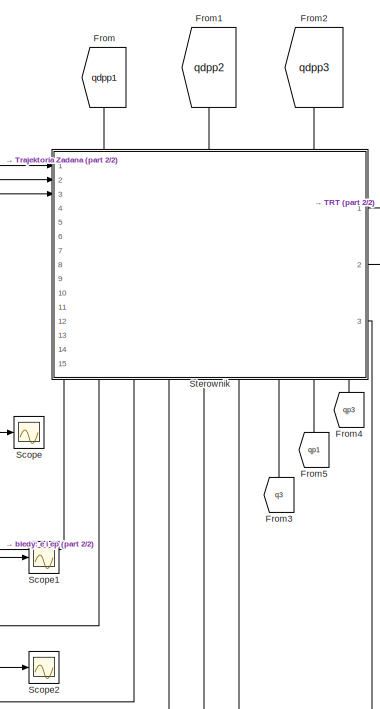
[diagram: root canvas - part 1/2, top right region]
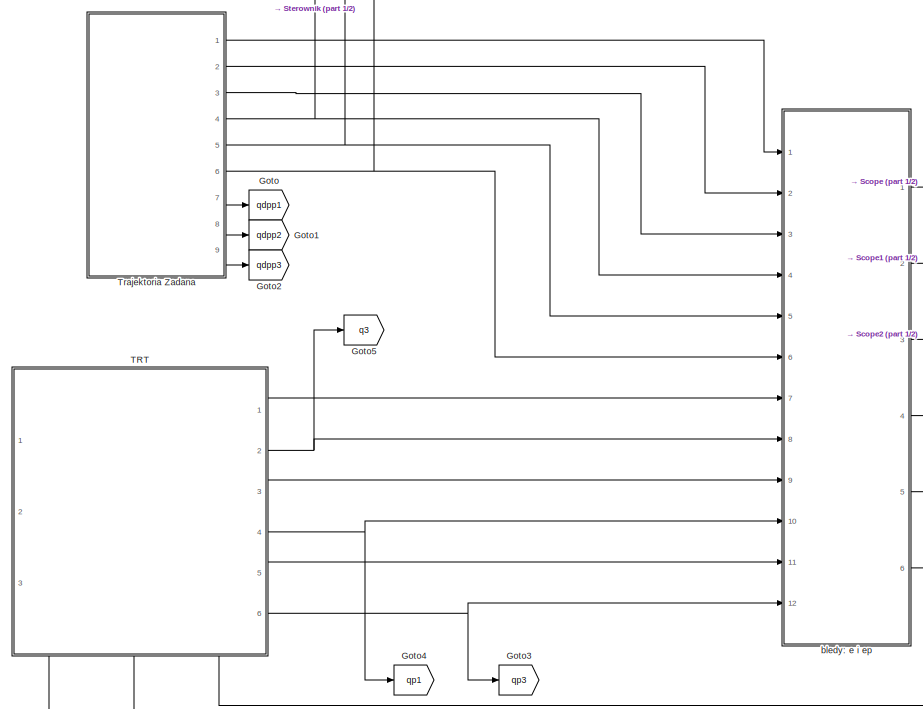
[diagram: root canvas - part 2/2, middle left region]
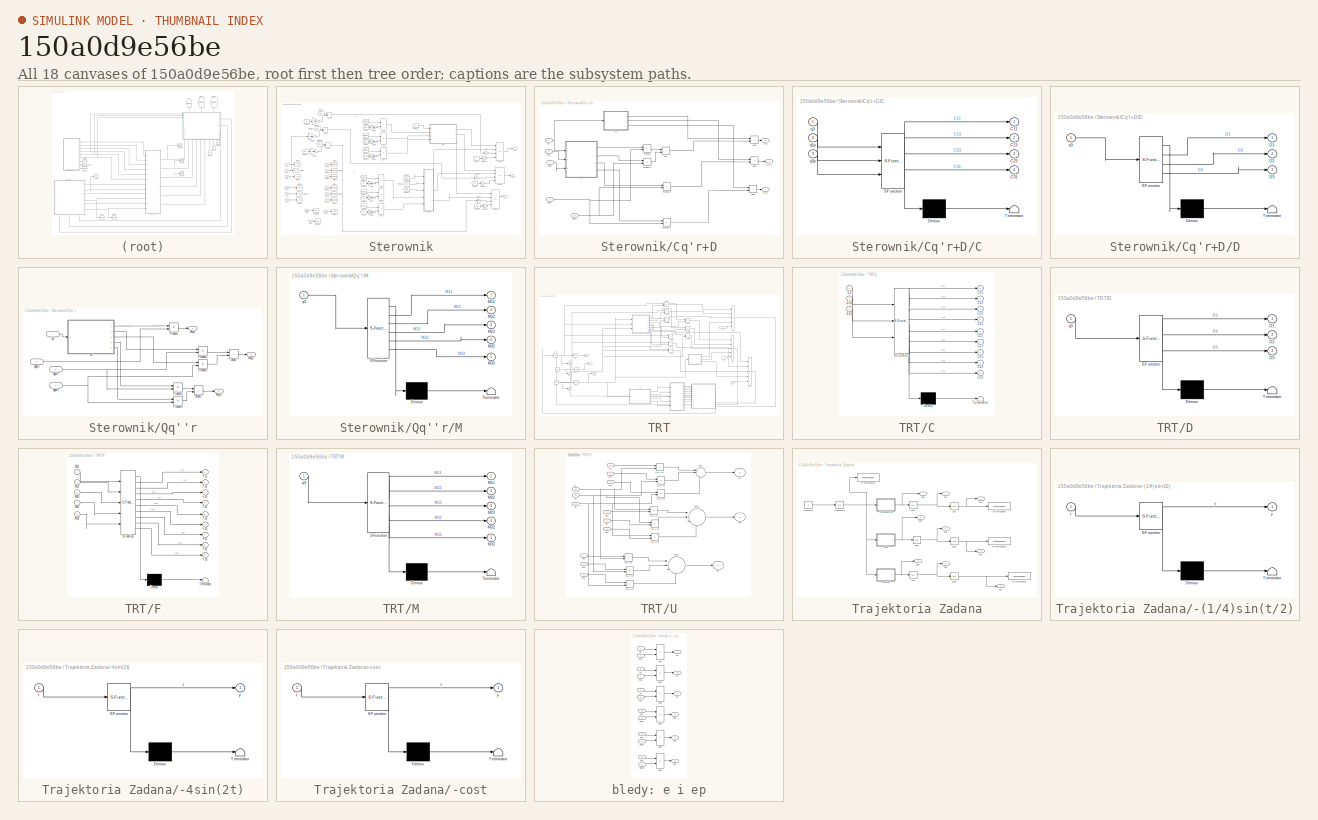
[diagram: thumbnail index - all 18 canvases of the model, root first then tree order]
MODEL slx_150a0d9e56be
KIND model
CONFIG AbsTol = auto
CONFIG EnableMultiTasking = off
CONFIG FixedStep = auto
CONFIG MaxStep = auto
CONFIG MinStep = auto
CONFIG RelTol = 1e-10
CONFIG SampleTimeConstraint = Unconstrained
CONFIG SolverName = ode45
CONFIG StartTime = 0.0
CONFIG StopTime = 20
BLOCK [From] From
  GotoTag = qdpp1
  NameLocation = left
BLOCK [From] From1
  GotoTag = qdpp2
  NameLocation = left
BLOCK [From] From2
  GotoTag = qdpp3
  NameLocation = left
BLOCK [From] From3
  GotoTag = q3
  NameLocation = right
BLOCK [From] From4
  GotoTag = qp3
  NameLocation = right
BLOCK [From] From5
  GotoTag = qp1
  NameLocation = right
BLOCK [Goto] Goto
  GotoTag = qdpp1
BLOCK [Goto] Goto1
  GotoTag = qdpp2
BLOCK [Goto] Goto2
  GotoTag = qdpp3
BLOCK [Goto] Goto3
  GotoTag = qp3
BLOCK [Goto] Goto4
  GotoTag = qp1
BLOCK [Goto] Goto5
  GotoTag = q3
BLOCK [Scope] Scope
  Floating = off
  NumInputPorts = 1
  Ports = [1]
  ScopeSpecificationString = Simulink.scopes.TimeScopeBlockCfg('CurrentConfiguration', extmgr.ConfigurationSet(extmgr.Configuration('Core','General UI',true),extmgr.Configuration('Core','Source UI',true),extmgr.Configuration('Sources','WiredSimulink',true),extmgr.Configuration('Visuals','Time Domain',true,'SerializedDisplays',{struct('MinYLimReal','-0.25005','MaxYLimReal','2.25001','YLabelReal','','MinYLimMag','0.00000','MaxY...<+1362ch>
BLOCK [Scope] Scope1
  Floating = off
  NumInputPorts = 1
  Ports = [1]
  ScopeSpecificationString = Simulink.scopes.TimeScopeBlockCfg('CurrentConfiguration', extmgr.ConfigurationSet(extmgr.Configuration('Core','General UI',true),extmgr.Configuration('Core','Source UI',true),extmgr.Configuration('Sources','WiredSimulink',true,'DataLoggingVariableName','ScopeData1'),extmgr.Configuration('Visuals','Time Domain',true,'SerializedDisplays',{struct('MinYLimReal','-0.375','MaxYLimReal','3.375','YLabelRe...<+1358ch>
BLOCK [Scope] Scope2
  Floating = off
  NumInputPorts = 1
  Ports = [1]
  ScopeSpecificationString = Simulink.scopes.TimeScopeBlockCfg('CurrentConfiguration', extmgr.ConfigurationSet(extmgr.Configuration('Core','General UI',true),extmgr.Configuration('Core','Source UI',true),extmgr.Configuration('Sources','WiredSimulink',true,'DataLoggingVariableName','ScopeData2'),extmgr.Configuration('Visuals','Time Domain',true,'SerializedDisplays',{struct('MinYLimReal','-0.25','MaxYLimReal','2.25','YLabelReal...<+1352ch>
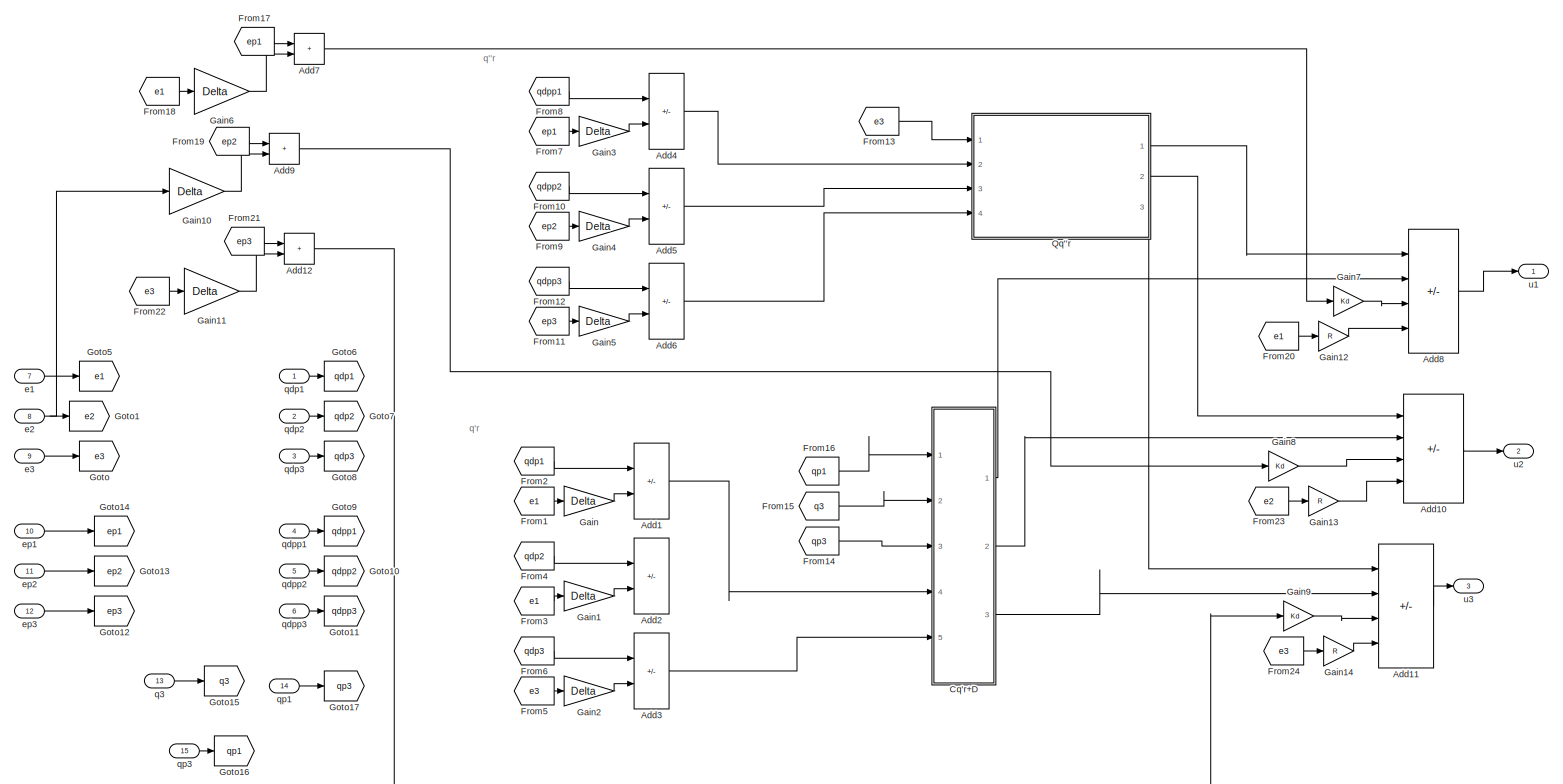
[diagram: Sterownik - part 1/2, most of the canvas]
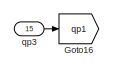
[diagram: Sterownik - part 2/2, bottom left region]
BLOCK [SubSystem] Sterownik
  PortSchema = {"entries":[{"content":{"sides":[{"content":{"connectorIds":["In1","In2","In3"]},"type":"ConnectorPlacement.EquallySpacedRectSide","uuid":"3b6b04bd-f501-409c-86cd-e77f57a76356"},{"content":{"connectorIds":["Out1","Out2","Out3"],"side":"RIGHT"},"type":"ConnectorPlacement.EquallySpacedRectSide","uuid":"169b3e08-ed10-485c-953a-d5cdf046a8f4"},{"content":{"connectorIds":["In4","In5","In6"],"side":"TOP"...<+486ch>
  Ports = [15, 3]
  RequestExecContextInheritance = off
BLOCK [Sum] Sterownik/Add1
  IconShape = rectangular
  Inputs = +-
  Ports = [2, 1]
BLOCK [Sum] Sterownik/Add10
  IconShape = rectangular
  Inputs = ++--
  Ports = [4, 1]
BLOCK [Sum] Sterownik/Add11
  IconShape = rectangular
  Inputs = ++--
  Ports = [4, 1]
BLOCK [Sum] Sterownik/Add12
  IconShape = rectangular
  Ports = [2, 1]
BLOCK [Sum] Sterownik/Add2
  Commented = on
  IconShape = rectangular
  Inputs = +-
  Ports = [2, 1]
BLOCK [Sum] Sterownik/Add3
  IconShape = rectangular
  Inputs = +-
  Ports = [2, 1]
BLOCK [Sum] Sterownik/Add4
  IconShape = rectangular
  Inputs = +-
  Ports = [2, 1]
BLOCK [Sum] Sterownik/Add5
  IconShape = rectangular
  Inputs = +-
  Ports = [2, 1]
BLOCK [Sum] Sterownik/Add6
  IconShape = rectangular
  Inputs = +-
  Ports = [2, 1]
BLOCK [Sum] Sterownik/Add7
  IconShape = rectangular
  Ports = [2, 1]
BLOCK [Sum] Sterownik/Add8
  IconShape = rectangular
  Inputs = ++--
  Ports = [4, 1]
BLOCK [Sum] Sterownik/Add9
  IconShape = rectangular
  Ports = [2, 1]
BLOCK [SubSystem] Sterownik/Cq'r+D
  Ports = [5, 3]
  RequestExecContextInheritance = off
BLOCK [Sum] Sterownik/Cq'r+D/Add
  IconShape = rectangular
  Ports = [2, 1]
BLOCK [Sum] Sterownik/Cq'r+D/Add1
  IconShape = rectangular
  Ports = [2, 1]
BLOCK [Sum] Sterownik/Cq'r+D/Add2
  IconShape = rectangular
  Ports = [2, 1]
BLOCK [Sum] Sterownik/Cq'r+D/Add3
  IconShape = rectangular
  Ports = [2, 1]
BLOCK [SubSystem] Sterownik/Cq'r+D/C
  ErrorFcn = Stateflow.Translate.translate
  PermitHierarchicalResolution = ExplicitOnly
  Ports = [3, 4]
  RequestExecContextInheritance = off
  SFBlockType = MATLAB Function
  TreatAsAtomicUnit = on
BLOCK [Demux] Sterownik/Cq'r+D/C/ Demux 
  Outputs = 1
  Ports = [1, 1]
BLOCK [S-Function] Sterownik/Cq'r+D/C/ SFunction 
  EnableBusSupport = on
  FunctionName = sf_sfun
  Parameters = l2,l3,m3
  PortCounts = [3 5]
  Ports = [3, 5]
  SFcnIsStateOwnerBlock = off
  SFunctionDeploymentMode = off
  Tag = Stateflow S-Function 9
BLOCK [Terminator] Sterownik/Cq'r+D/C/ Terminator 
BLOCK [Outport] Sterownik/Cq'r+D/C/C11
BLOCK [Outport] Sterownik/Cq'r+D/C/C13
  Port = 2
BLOCK [Outport] Sterownik/Cq'r+D/C/C23
  Port = 3
BLOCK [Outport] Sterownik/Cq'r+D/C/C31
  Port = 4
BLOCK [Inport] Sterownik/Cq'r+D/C/q1p
  Port = 2
BLOCK [Inport] Sterownik/Cq'r+D/C/q3
BLOCK [Inport] Sterownik/Cq'r+D/C/q3p
  Port = 3
BLOCK [Outport] Sterownik/Cq'r+D/CD1
BLOCK [Outport] Sterownik/Cq'r+D/CD2
  Port = 2
BLOCK [Outport] Sterownik/Cq'r+D/CD3
  Port = 3
BLOCK [SubSystem] Sterownik/Cq'r+D/D
  ErrorFcn = Stateflow.Translate.translate
  PermitHierarchicalResolution = ExplicitOnly
  Ports = [1, 3]
  RequestExecContextInheritance = off
  SFBlockType = MATLAB Function
  TreatAsAtomicUnit = on
BLOCK [Demux] Sterownik/Cq'r+D/D/ Demux 
  Outputs = 1
  Ports = [1, 1]
BLOCK [S-Function] Sterownik/Cq'r+D/D/ SFunction 
  EnableBusSupport = on
  FunctionName = sf_sfun
  Parameters = g,l3,m2,m3
  PortCounts = [1 4]
  Ports = [1, 4]
  SFcnIsStateOwnerBlock = off
  SFunctionDeploymentMode = off
  Tag = Stateflow S-Function 10
BLOCK [Terminator] Sterownik/Cq'r+D/D/ Terminator 
BLOCK [Outport] Sterownik/Cq'r+D/D/D1
BLOCK [Outport] Sterownik/Cq'r+D/D/D2
  Port = 2
BLOCK [Outport] Sterownik/Cq'r+D/D/D3
  Port = 3
BLOCK [Inport] Sterownik/Cq'r+D/D/q3
BLOCK [Product] Sterownik/Cq'r+D/Product
  Ports = [2, 1]
BLOCK [Product] Sterownik/Cq'r+D/Product1
  Ports = [2, 1]
BLOCK [Product] Sterownik/Cq'r+D/Product2
  Ports = [2, 1]
BLOCK [Product] Sterownik/Cq'r+D/Product3
  Ports = [2, 1]
BLOCK [Inport] Sterownik/Cq'r+D/q1p
  Port = 2
BLOCK [Inport] Sterownik/Cq'r+D/q3
BLOCK [Inport] Sterownik/Cq'r+D/q3p
  Port = 3
BLOCK [Inport] Sterownik/Cq'r+D/qpr1
  Port = 4
BLOCK [Inport] Sterownik/Cq'r+D/qpr3
  Port = 5
BLOCK [From] Sterownik/From1
  GotoTag = e1
BLOCK [From] Sterownik/From10
  GotoTag = qdpp2
BLOCK [From] Sterownik/From11
  GotoTag = ep3
BLOCK [From] Sterownik/From12
  GotoTag = qdpp3
BLOCK [From] Sterownik/From13
  GotoTag = e3
BLOCK [From] Sterownik/From14
  GotoTag = qp3
BLOCK [From] Sterownik/From15
  GotoTag = q3
BLOCK [From] Sterownik/From16
  GotoTag = qp1
BLOCK [From] Sterownik/From17
  GotoTag = ep1
BLOCK [From] Sterownik/From18
  GotoTag = e1
BLOCK [From] Sterownik/From19
  GotoTag = ep2
BLOCK [From] Sterownik/From2
  GotoTag = qdp1
BLOCK [From] Sterownik/From20
  GotoTag = e1
BLOCK [From] Sterownik/From21
  GotoTag = ep3
BLOCK [From] Sterownik/From22
  GotoTag = e3
BLOCK [From] Sterownik/From23
  GotoTag = e2
BLOCK [From] Sterownik/From24
  GotoTag = e3
BLOCK [From] Sterownik/From3
  Commented = on
  GotoTag = e1
BLOCK [From] Sterownik/From4
  Commented = on
  GotoTag = qdp2
BLOCK [From] Sterownik/From5
  GotoTag = e3
BLOCK [From] Sterownik/From6
  GotoTag = qdp3
BLOCK [From] Sterownik/From7
  GotoTag = ep1
BLOCK [From] Sterownik/From8
  GotoTag = qdpp1
BLOCK [From] Sterownik/From9
  GotoTag = ep2
BLOCK [Gain] Sterownik/Gain
  Gain = Delta
BLOCK [Gain] Sterownik/Gain1
  Commented = on
  Gain = Delta
BLOCK [Gain] Sterownik/Gain10
  Gain = Delta
BLOCK [Gain] Sterownik/Gain11
  Gain = Delta
BLOCK [Gain] Sterownik/Gain12
  Gain = R
BLOCK [Gain] Sterownik/Gain13
  Gain = R
BLOCK [Gain] Sterownik/Gain14
  Gain = R
BLOCK [Gain] Sterownik/Gain2
  Gain = Delta
BLOCK [Gain] Sterownik/Gain3
  Gain = Delta
BLOCK [Gain] Sterownik/Gain4
  Gain = Delta
BLOCK [Gain] Sterownik/Gain5
  Gain = Delta
BLOCK [Gain] Sterownik/Gain6
  Gain = Delta
BLOCK [Gain] Sterownik/Gain7
  Gain = Kd
BLOCK [Gain] Sterownik/Gain8
  Gain = Kd
BLOCK [Gain] Sterownik/Gain9
  Gain = Kd
BLOCK [Goto] Sterownik/Goto
  GotoTag = e3
BLOCK [Goto] Sterownik/Goto1
  GotoTag = e2
BLOCK [Goto] Sterownik/Goto10
  GotoTag = qdpp2
BLOCK [Goto] Sterownik/Goto11
  GotoTag = qdpp3
BLOCK [Goto] Sterownik/Goto12
  GotoTag = ep3
BLOCK [Goto] Sterownik/Goto13
  GotoTag = ep2
BLOCK [Goto] Sterownik/Goto14
  GotoTag = ep1
BLOCK [Goto] Sterownik/Goto15
  GotoTag = q3
BLOCK [Goto] Sterownik/Goto16
  GotoTag = qp1
BLOCK [Goto] Sterownik/Goto17
  GotoTag = qp3
BLOCK [Goto] Sterownik/Goto5
  GotoTag = e1
BLOCK [Goto] Sterownik/Goto6
  GotoTag = qdp1
BLOCK [Goto] Sterownik/Goto7
  GotoTag = qdp2
BLOCK [Goto] Sterownik/Goto8
  GotoTag = qdp3
BLOCK [Goto] Sterownik/Goto9
  GotoTag = qdpp1
BLOCK [SubSystem] Sterownik/Qq''r
  Ports = [4, 3]
  RequestExecContextInheritance = off
BLOCK [Sum] Sterownik/Qq''r/Add
  IconShape = rectangular
  Ports = [2, 1]
BLOCK [Sum] Sterownik/Qq''r/Add1
  IconShape = rectangular
  Ports = [2, 1]
BLOCK [SubSystem] Sterownik/Qq''r/M
  ErrorFcn = Stateflow.Translate.translate
  PermitHierarchicalResolution = ExplicitOnly
  Ports = [1, 5]
  RequestExecContextInheritance = off
  SFBlockType = MATLAB Function
  TreatAsAtomicUnit = on
BLOCK [Demux] Sterownik/Qq''r/M/ Demux 
  Outputs = 1
  Ports = [1, 1]
BLOCK [S-Function] Sterownik/Qq''r/M/ SFunction 
  EnableBusSupport = on
  FunctionName = sf_sfun
  Parameters = l2,l3,m2,m3
  PortCounts = [1 6]
  Ports = [1, 6]
  SFcnIsStateOwnerBlock = off
  SFunctionDeploymentMode = off
  Tag = Stateflow S-Function 8
BLOCK [Terminator] Sterownik/Qq''r/M/ Terminator 
BLOCK [Outport] Sterownik/Qq''r/M/M11
BLOCK [Outport] Sterownik/Qq''r/M/M22
  Port = 2
BLOCK [Outport] Sterownik/Qq''r/M/M23
  Port = 3
BLOCK [Outport] Sterownik/Qq''r/M/M32
  Port = 4
BLOCK [Outport] Sterownik/Qq''r/M/M33
  Port = 5
BLOCK [Inport] Sterownik/Qq''r/M/q3
BLOCK [Outport] Sterownik/Qq''r/Mqr1
BLOCK [Outport] Sterownik/Qq''r/Mqr2
  Port = 2
BLOCK [Outport] Sterownik/Qq''r/Mqr3
  Port = 3
BLOCK [Product] Sterownik/Qq''r/Product
  Ports = [2, 1]
BLOCK [Product] Sterownik/Qq''r/Product1
  Ports = [2, 1]
BLOCK [Product] Sterownik/Qq''r/Product2
  Ports = [2, 1]
BLOCK [Product] Sterownik/Qq''r/Product3
  Ports = [2, 1]
BLOCK [Product] Sterownik/Qq''r/Product4
  Ports = [2, 1]
BLOCK [Inport] Sterownik/Qq''r/q3
BLOCK [Inport] Sterownik/Qq''r/qppr1
  Port = 2
BLOCK [Inport] Sterownik/Qq''r/qppr2
  Port = 3
BLOCK [Inport] Sterownik/Qq''r/qppr3
  Port = 4
BLOCK [Inport] Sterownik/e1
  Port = 7
BLOCK [Inport] Sterownik/e2
  Port = 8
BLOCK [Inport] Sterownik/e3
  Port = 9
BLOCK [Inport] Sterownik/ep1
  Port = 10
BLOCK [Inport] Sterownik/ep2
  Port = 11
BLOCK [Inport] Sterownik/ep3
  Port = 12
BLOCK [Inport] Sterownik/q3
  Port = 13
BLOCK [Inport] Sterownik/qdp1
BLOCK [Inport] Sterownik/qdp2
  Port = 2
BLOCK [Inport] Sterownik/qdp3
  Port = 3
BLOCK [Inport] Sterownik/qdpp1
  Port = 4
BLOCK [Inport] Sterownik/qdpp2
  Port = 5
BLOCK [Inport] Sterownik/qdpp3
  Port = 6
BLOCK [Inport] Sterownik/qp1
  Port = 14
BLOCK [Inport] Sterownik/qp3
  Port = 15
BLOCK [Outport] Sterownik/u1
BLOCK [Outport] Sterownik/u2
  Port = 2
BLOCK [Outport] Sterownik/u3
  Port = 3
BLOCK [SubSystem] TRT
  PortSchema = {"entries":[{"content":{"sides":[{"content":{"connectorIds":[]},"type":"ConnectorPlacement.EquallySpacedRectSide","uuid":"a13a475c-743e-4b68-af9c-5e746e266b9c"},{"content":{"connectorIds":["Out1","Out2","Out3","Out4","Out5","Out6"],"side":"RIGHT"},"type":"ConnectorPlacement.EquallySpacedRectSide","uuid":"c38df9ec-cc79-4f7b-9920-87d5ccf64580"},{"content":{"connectorIds":[],"side":"TOP"},"type":"Con...<+431ch>
  Ports = [3, 6]
  RequestExecContextInheritance = off
BLOCK [SubSystem] TRT/C
  ErrorFcn = Stateflow.Translate.translate
  PermitHierarchicalResolution = ExplicitOnly
  Ports = [3, 9]
  RequestExecContextInheritance = off
  SFBlockType = MATLAB Function
  TreatAsAtomicUnit = on
BLOCK [Demux] TRT/C/ Demux 
  Outputs = 1
  Ports = [1, 1]
BLOCK [S-Function] TRT/C/ SFunction 
  EnableBusSupport = on
  FunctionName = sf_sfun
  Parameters = l2,l3,m3
  PortCounts = [3 10]
  Ports = [3, 10]
  SFcnIsStateOwnerBlock = off
  SFunctionDeploymentMode = off
  Tag = Stateflow S-Function 3
BLOCK [Terminator] TRT/C/ Terminator 
BLOCK [Outport] TRT/C/C11
BLOCK [Outport] TRT/C/C12
  Port = 2
BLOCK [Outport] TRT/C/C13
  Port = 3
BLOCK [Outport] TRT/C/C21
  Port = 4
BLOCK [Outport] TRT/C/C22
  Port = 5
BLOCK [Outport] TRT/C/C23
  Port = 6
BLOCK [Outport] TRT/C/C31
  Port = 7
BLOCK [Outport] TRT/C/C32
  Port = 8
BLOCK [Outport] TRT/C/C33
  Port = 9
BLOCK [Inport] TRT/C/q1p
  Port = 2
BLOCK [Inport] TRT/C/q3
BLOCK [Inport] TRT/C/q3p
  Port = 3
BLOCK [SubSystem] TRT/D
  ErrorFcn = Stateflow.Translate.translate
  PermitHierarchicalResolution = ExplicitOnly
  Ports = [1, 3]
  RequestExecContextInheritance = off
  SFBlockType = MATLAB Function
  TreatAsAtomicUnit = on
BLOCK [Demux] TRT/D/ Demux 
  Outputs = 1
  Ports = [1, 1]
BLOCK [S-Function] TRT/D/ SFunction 
  EnableBusSupport = on
  FunctionName = sf_sfun
  Parameters = g,l3,m2,m3
  PortCounts = [1 4]
  Ports = [1, 4]
  SFcnIsStateOwnerBlock = off
  SFunctionDeploymentMode = off
  Tag = Stateflow S-Function 4
BLOCK [Terminator] TRT/D/ Terminator 
BLOCK [Outport] TRT/D/D1
BLOCK [Outport] TRT/D/D2
  Port = 2
BLOCK [Outport] TRT/D/D3
  Port = 3
BLOCK [Inport] TRT/D/q3
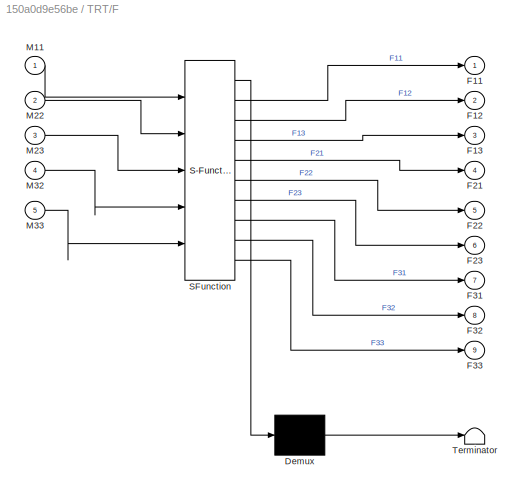
BLOCK [SubSystem] TRT/F
  ErrorFcn = Stateflow.Translate.translate
  PermitHierarchicalResolution = ExplicitOnly
  Ports = [5, 9]
  RequestExecContextInheritance = off
  SFBlockType = MATLAB Function
  TreatAsAtomicUnit = on
BLOCK [Demux] TRT/F/ Demux 
  Outputs = 1
  Ports = [1, 1]
BLOCK [S-Function] TRT/F/ SFunction 
  EnableBusSupport = on
  FunctionName = sf_sfun
  PortCounts = [5 10]
  Ports = [5, 10]
  SFcnIsStateOwnerBlock = off
  SFunctionDeploymentMode = off
  Tag = Stateflow S-Function 7
BLOCK [Terminator] TRT/F/ Terminator 
BLOCK [Outport] TRT/F/F11
BLOCK [Outport] TRT/F/F12
  Port = 2
BLOCK [Outport] TRT/F/F13
  Port = 3
BLOCK [Outport] TRT/F/F21
  Port = 4
BLOCK [Outport] TRT/F/F22
  Port = 5
BLOCK [Outport] TRT/F/F23
  Port = 6
BLOCK [Outport] TRT/F/F31
  Port = 7
BLOCK [Outport] TRT/F/F32
  Port = 8
BLOCK [Outport] TRT/F/F33
  Port = 9
BLOCK [Inport] TRT/F/M11
BLOCK [Inport] TRT/F/M22
  Port = 2
BLOCK [Inport] TRT/F/M23
  Port = 3
BLOCK [Inport] TRT/F/M32
  Port = 4
BLOCK [Inport] TRT/F/M33
  Port = 5
BLOCK [SubSystem] TRT/M
  ErrorFcn = Stateflow.Translate.translate
  PermitHierarchicalResolution = ExplicitOnly
  Ports = [1, 5]
  RequestExecContextInheritance = off
  SFBlockType = MATLAB Function
  TreatAsAtomicUnit = on
BLOCK [Demux] TRT/M/ Demux 
  Outputs = 1
  Ports = [1, 1]
BLOCK [S-Function] TRT/M/ SFunction 
  EnableBusSupport = on
  FunctionName = sf_sfun
  Parameters = l2,l3,m2,m3
  PortCounts = [1 6]
  Ports = [1, 6]
  SFcnIsStateOwnerBlock = off
  SFunctionDeploymentMode = off
  Tag = Stateflow S-Function 2
BLOCK [Terminator] TRT/M/ Terminator 
BLOCK [Outport] TRT/M/M11
BLOCK [Outport] TRT/M/M22
  Port = 2
BLOCK [Outport] TRT/M/M23
  Port = 3
BLOCK [Outport] TRT/M/M32
  Port = 4
BLOCK [Outport] TRT/M/M33
  Port = 5
BLOCK [Inport] TRT/M/q3
BLOCK [SubSystem] TRT/U
  PortSchema = {"entries":[{"content":{"sides":[{"content":{"connectorIds":["In1","In2","In3","In4","In5","In6","In7","In8","In9"]},"type":"ConnectorPlacement.EquallySpacedRectSide","uuid":"30710644-9e06-400a-91a1-da9eb46b634c"},{"content":{"connectorIds":["In10","In11","In12"],"side":"RIGHT"},"type":"ConnectorPlacement.EquallySpacedRectSide","uuid":"450ad47e-e867-455a-81bd-6c2cfcae7014"},{"content":{"connectorI...<+466ch>
  Ports = [12, 3]
  RequestExecContextInheritance = off
BLOCK [Inport] TRT/U/F11
BLOCK [Inport] TRT/U/F12
  Port = 2
BLOCK [Inport] TRT/U/F13
  Port = 4
BLOCK [Inport] TRT/U/F21
  Port = 3
BLOCK [Inport] TRT/U/F22
  Port = 5
BLOCK [Inport] TRT/U/F23
  Port = 6
BLOCK [Inport] TRT/U/F31
  Port = 7
BLOCK [Inport] TRT/U/F32
  Port = 8
BLOCK [Inport] TRT/U/F33
  Port = 9
BLOCK [Sum] TRT/U/Sum
  Inputs = |+++
  Ports = [3, 1]
BLOCK [Sum] TRT/U/Sum1
  Inputs = |+++
  Ports = [3, 1]
BLOCK [Sum] TRT/U/Sum2
  Inputs = |+++
  Ports = [3, 1]
BLOCK [Product] TRT/U/f11 x h1
  Ports = [2, 1]
BLOCK [Product] TRT/U/f12 x h2
  Ports = [2, 1]
BLOCK [Product] TRT/U/f13 x h3
  Ports = [2, 1]
BLOCK [Product] TRT/U/f21 x h1
  Ports = [2, 1]
BLOCK [Product] TRT/U/f22 x h2
  Ports = [2, 1]
BLOCK [Product] TRT/U/f23 x h3
  Ports = [2, 1]
BLOCK [Product] TRT/U/f31 x h1
  Ports = [2, 1]
BLOCK [Product] TRT/U/f32 x h2
  Ports = [2, 1]
BLOCK [Product] TRT/U/f33 x h3
  Ports = [2, 1]
BLOCK [Inport] TRT/U/h1
  Port = 12
BLOCK [Inport] TRT/U/h2
  Port = 11
BLOCK [Inport] TRT/U/h3
  Port = 10
BLOCK [Outport] TRT/U/in1
  Port = 3
BLOCK [Outport] TRT/U/in2
  Port = 2
BLOCK [Outport] TRT/U/in3
BLOCK [Product] TRT/c11*q'1
  Ports = [2, 1]
BLOCK [Product] TRT/c12*q'2
  Ports = [2, 1]
BLOCK [Product] TRT/c13*q'3
  Ports = [2, 1]
BLOCK [Product] TRT/c21*q'1
  Ports = [2, 1]
BLOCK [Product] TRT/c22*q'2
  Ports = [2, 1]
BLOCK [Product] TRT/c23*q'3
  Ports = [2, 1]
BLOCK [Product] TRT/c31*q'1
  Ports = [2, 1]
BLOCK [Product] TRT/c32*q'2
  Ports = [2, 1]
BLOCK [Product] TRT/c33*q'3
  Ports = [2, 1]
BLOCK [Sum] TRT/h1
  IconShape = rectangular
  Inputs = ----+
  Ports = [5, 1]
BLOCK [Sum] TRT/h2
  IconShape = rectangular
  Inputs = ----+
  Ports = [5, 1]
BLOCK [Sum] TRT/h3
  IconShape = rectangular
  Inputs = ----+
  Ports = [5, 1]
BLOCK [Outport] TRT/q'1
  Port = 4
BLOCK [Outport] TRT/q'2
  Port = 5
BLOCK [Outport] TRT/q'3
  Port = 6
BLOCK [Outport] TRT/q1
BLOCK [Integrator] TRT/q1'
  InitialCondition = q1p_0
  Ports = [1, 1]
BLOCK [Integrator] TRT/q1.
  InitialCondition = q1_0
  Ports = [1, 1]
BLOCK [Outport] TRT/q2
  Port = 2
BLOCK [Integrator] TRT/q2'
  InitialCondition = q2p_0
  Ports = [1, 1]
BLOCK [Integrator] TRT/q2.
  InitialCondition = q2_0
  Ports = [1, 1]
BLOCK [Outport] TRT/q3
  Port = 3
BLOCK [Integrator] TRT/q3'
  InitialCondition = q3p_0
  Ports = [1, 1]
BLOCK [Integrator] TRT/q3.
  InitialCondition = q3_0
  Ports = [1, 1]
BLOCK [Inport] TRT/u1
BLOCK [Inport] TRT/u2
  Port = 2
BLOCK [Inport] TRT/u3
  Port = 3
BLOCK [SubSystem] Trajektoria Zadana
  Ports = [0, 9]
  RequestExecContextInheritance = off
BLOCK [Integrator] Trajektoria Zadana/ q1d
  InitialCondition = q1d_0
  Ports = [1, 1]
BLOCK [Integrator] Trajektoria Zadana/ q1d1
  Ports = [1, 1]
BLOCK [Integrator] Trajektoria Zadana/ q2d1
  InitialCondition = q2d_0
  Ports = [1, 1]
BLOCK [Integrator] Trajektoria Zadana/ q2d2
  InitialCondition = 2
  Ports = [1, 1]
BLOCK [Integrator] Trajektoria Zadana/ q3d''
  Ports = [1, 1]
BLOCK [Integrator] Trajektoria Zadana/ q3d2
  InitialCondition = q3d_0
  Ports = [1, 1]
BLOCK [SubSystem] Trajektoria Zadana/-(1//4)sin(t//2)
  ErrorFcn = Stateflow.Translate.translate
  PermitHierarchicalResolution = ExplicitOnly
  Ports = [1, 1]
  RequestExecContextInheritance = off
  SFBlockType = MATLAB Function
  TreatAsAtomicUnit = on
BLOCK [Demux] Trajektoria Zadana/-(1//4)sin(t//2)/ Demux 
  Outputs = 1
  Ports = [1, 1]
BLOCK [S-Function] Trajektoria Zadana/-(1//4)sin(t//2)/ SFunction 
  EnableBusSupport = on
  FunctionName = sf_sfun
  PortCounts = [1 2]
  Ports = [1, 2]
  SFcnIsStateOwnerBlock = off
  SFunctionDeploymentMode = off
  Tag = Stateflow S-Function 5
BLOCK [Terminator] Trajektoria Zadana/-(1//4)sin(t//2)/ Terminator 
BLOCK [Inport] Trajektoria Zadana/-(1//4)sin(t//2)/t
BLOCK [Outport] Trajektoria Zadana/-(1//4)sin(t//2)/y
BLOCK [SubSystem] Trajektoria Zadana/-4sin(2t)
  ErrorFcn = Stateflow.Translate.translate
  PermitHierarchicalResolution = ExplicitOnly
  Ports = [1, 1]
  RequestExecContextInheritance = off
  SFBlockType = MATLAB Function
  TreatAsAtomicUnit = on
BLOCK [Demux] Trajektoria Zadana/-4sin(2t)/ Demux 
  Outputs = 1
  Ports = [1, 1]
BLOCK [S-Function] Trajektoria Zadana/-4sin(2t)/ SFunction 
  EnableBusSupport = on
  FunctionName = sf_sfun
  PortCounts = [1 2]
  Ports = [1, 2]
  SFcnIsStateOwnerBlock = off
  SFunctionDeploymentMode = off
  Tag = Stateflow S-Function 1
BLOCK [Terminator] Trajektoria Zadana/-4sin(2t)/ Terminator 
BLOCK [Inport] Trajektoria Zadana/-4sin(2t)/t
BLOCK [Outport] Trajektoria Zadana/-4sin(2t)/y
BLOCK [SubSystem] Trajektoria Zadana/-cost
  ErrorFcn = Stateflow.Translate.translate
  PermitHierarchicalResolution = ExplicitOnly
  Ports = [1, 1]
  RequestExecContextInheritance = off
  SFBlockType = MATLAB Function
  TreatAsAtomicUnit = on
BLOCK [Demux] Trajektoria Zadana/-cost/ Demux 
  Outputs = 1
  Ports = [1, 1]
BLOCK [S-Function] Trajektoria Zadana/-cost/ SFunction 
  EnableBusSupport = on
  FunctionName = sf_sfun
  PortCounts = [1 2]
  Ports = [1, 2]
  SFcnIsStateOwnerBlock = off
  SFunctionDeploymentMode = off
  Tag = Stateflow S-Function 6
BLOCK [Terminator] Trajektoria Zadana/-cost/ Terminator 
BLOCK [Inport] Trajektoria Zadana/-cost/t
BLOCK [Outport] Trajektoria Zadana/-cost/y
BLOCK [Constant] Trajektoria Zadana/Constant1
BLOCK [Integrator] Trajektoria Zadana/Integrator2
  Ports = [1, 1]
BLOCK [ToWorkspace] Trajektoria Zadana/To Workspace
  FixptAsFi = on
  MaxDataPoints = inf
  Ports = [1]
  SampleTime = -1
  VariableName = q1ds
BLOCK [ToWorkspace] Trajektoria Zadana/To Workspace1
  FixptAsFi = on
  MaxDataPoints = inf
  Ports = [1]
  SampleTime = -1
  VariableName = q2ds
BLOCK [ToWorkspace] Trajektoria Zadana/To Workspace2
  FixptAsFi = on
  MaxDataPoints = inf
  Ports = [1]
  SampleTime = -1
  VariableName = t
BLOCK [ToWorkspace] Trajektoria Zadana/To Workspace3
  FixptAsFi = on
  MaxDataPoints = inf
  Ports = [1]
  SampleTime = -1
  VariableName = q3ds
BLOCK [Outport] Trajektoria Zadana/q1d
BLOCK [Outport] Trajektoria Zadana/q1d'
  Port = 4
BLOCK [Outport] Trajektoria Zadana/q2d
  Port = 2
BLOCK [Outport] Trajektoria Zadana/q2d'
  Port = 5
BLOCK [Outport] Trajektoria Zadana/q3d
  Port = 3
BLOCK [Outport] Trajektoria Zadana/q3d'
  Port = 6
BLOCK [Outport] Trajektoria Zadana/qd''1
  Port = 7
BLOCK [Outport] Trajektoria Zadana/qd''2
  Port = 8
BLOCK [Outport] Trajektoria Zadana/qd''3
  Port = 9
BLOCK [SubSystem] bledy: e i ep
  Ports = [12, 6]
  RequestExecContextInheritance = off
BLOCK [Sum] bledy: e i ep/Add
  IconShape = rectangular
  Inputs = +-
  Ports = [2, 1]
BLOCK [Sum] bledy: e i ep/Add1
  IconShape = rectangular
  Inputs = +-
  Ports = [2, 1]
BLOCK [Sum] bledy: e i ep/Add2
  IconShape = rectangular
  Inputs = +-
  Ports = [2, 1]
BLOCK [Sum] bledy: e i ep/Add3
  IconShape = rectangular
  Inputs = +-
  Ports = [2, 1]
BLOCK [Sum] bledy: e i ep/Add4
  IconShape = rectangular
  Inputs = +-
  Ports = [2, 1]
BLOCK [Sum] bledy: e i ep/Add5
  IconShape = rectangular
  Inputs = +-
  Ports = [2, 1]
BLOCK [Outport] bledy: e i ep/e1
BLOCK [Outport] bledy: e i ep/e2
  Port = 2
BLOCK [Outport] bledy: e i ep/e3
  Port = 3
BLOCK [Outport] bledy: e i ep/ep1
  Port = 4
BLOCK [Outport] bledy: e i ep/ep2
  Port = 5
BLOCK [Outport] bledy: e i ep/ep3
  Port = 6
BLOCK [Inport] bledy: e i ep/q1
  Port = 7
BLOCK [Inport] bledy: e i ep/q2
  Port = 8
BLOCK [Inport] bledy: e i ep/q3
  Port = 9
BLOCK [Inport] bledy: e i ep/qd1
BLOCK [Inport] bledy: e i ep/qd2
  Port = 2
BLOCK [Inport] bledy: e i ep/qd3
  Port = 3
BLOCK [Inport] bledy: e i ep/qp1
  Port = 10
BLOCK [Inport] bledy: e i ep/qp2
  Port = 11
BLOCK [Inport] bledy: e i ep/qp3
  Port = 12
BLOCK [Inport] bledy: e i ep/qpd1
  Port = 4
BLOCK [Inport] bledy: e i ep/qpd2
  Port = 5
BLOCK [Inport] bledy: e i ep/qpd3
  Port = 6
ANNOTATION Sterownik: q''r
ANNOTATION Sterownik: q'r
LINE From1:1 -> Sterownik:5
LINE From2:1 -> Sterownik:6
LINE From3:1 -> Sterownik:13
LINE From4:1 -> Sterownik:15
LINE From5:1 -> Sterownik:14
LINE From:1 -> Sterownik:4
LINE Sterownik/Add10:1 -> Sterownik/u2:1
LINE Sterownik/Add11:1 -> Sterownik/u3:1
LINE Sterownik/Add12:1 -> Sterownik/Gain9:1
LINE Sterownik/Add1:1 -> Sterownik/Cq'r+D:4
LINE Sterownik/Add3:1 -> Sterownik/Cq'r+D:5
LINE Sterownik/Add4:1 -> Sterownik/Qq''r:2
LINE Sterownik/Add5:1 -> Sterownik/Qq''r:3
LINE Sterownik/Add6:1 -> Sterownik/Qq''r:4
LINE Sterownik/Add7:1 -> Sterownik/Gain7:1
LINE Sterownik/Add8:1 -> Sterownik/u1:1
LINE Sterownik/Add9:1 -> Sterownik/Gain8:1
LINE Sterownik/Cq'r+D/Add1:1 -> Sterownik/Cq'r+D/CD1:1
LINE Sterownik/Cq'r+D/Add2:1 -> Sterownik/Cq'r+D/CD2:1
LINE Sterownik/Cq'r+D/Add3:1 -> Sterownik/Cq'r+D/CD3:1
LINE Sterownik/Cq'r+D/Add:1 -> Sterownik/Cq'r+D/Add1:2
LINE Sterownik/Cq'r+D/C:1 -> Sterownik/Cq'r+D/Product:1
LINE Sterownik/Cq'r+D/C:2 -> Sterownik/Cq'r+D/Product1:1
LINE Sterownik/Cq'r+D/C:3 -> Sterownik/Cq'r+D/Product2:1
LINE Sterownik/Cq'r+D/C:4 -> Sterownik/Cq'r+D/Product3:1
LINE Sterownik/Cq'r+D/D:1 -> Sterownik/Cq'r+D/Add1:1
LINE Sterownik/Cq'r+D/D:2 -> Sterownik/Cq'r+D/Add2:1
LINE Sterownik/Cq'r+D/D:3 -> Sterownik/Cq'r+D/Add3:1
LINE Sterownik/Cq'r+D/Product1:1 -> Sterownik/Cq'r+D/Add:2
LINE Sterownik/Cq'r+D/Product2:1 -> Sterownik/Cq'r+D/Add2:2
LINE Sterownik/Cq'r+D/Product3:1 -> Sterownik/Cq'r+D/Add3:2
LINE Sterownik/Cq'r+D/Product:1 -> Sterownik/Cq'r+D/Add:1
LINE Sterownik/Cq'r+D/q1p:1 -> Sterownik/Cq'r+D/C:2
NET Sterownik/Cq'r+D/q3:1 -> Sterownik/Cq'r+D/C:1, Sterownik/Cq'r+D/D:1
LINE Sterownik/Cq'r+D/q3p:1 -> Sterownik/Cq'r+D/C:3
NET Sterownik/Cq'r+D/qpr1:1 -> Sterownik/Cq'r+D/Product3:2, Sterownik/Cq'r+D/Product:2
NET Sterownik/Cq'r+D/qpr3:1 -> Sterownik/Cq'r+D/Product1:2, Sterownik/Cq'r+D/Product2:2
LINE Sterownik/Cq'r+D:1 -> Sterownik/Add8:2
LINE Sterownik/Cq'r+D:2 -> Sterownik/Add10:2
LINE Sterownik/Cq'r+D:3 -> Sterownik/Add11:2
LINE Sterownik/From10:1 -> Sterownik/Add5:1
LINE Sterownik/From11:1 -> Sterownik/Gain5:1
LINE Sterownik/From12:1 -> Sterownik/Add6:1
LINE Sterownik/From13:1 -> Sterownik/Qq''r:1
LINE Sterownik/From14:1 -> Sterownik/Cq'r+D:3
LINE Sterownik/From15:1 -> Sterownik/Cq'r+D:2
LINE Sterownik/From16:1 -> Sterownik/Cq'r+D:1
LINE Sterownik/From17:1 -> Sterownik/Add7:1
LINE Sterownik/From18:1 -> Sterownik/Gain6:1
LINE Sterownik/From19:1 -> Sterownik/Add9:1
LINE Sterownik/From1:1 -> Sterownik/Gain:1
LINE Sterownik/From20:1 -> Sterownik/Gain12:1
LINE Sterownik/From21:1 -> Sterownik/Add12:1
LINE Sterownik/From22:1 -> Sterownik/Gain11:1
LINE Sterownik/From23:1 -> Sterownik/Gain13:1
LINE Sterownik/From24:1 -> Sterownik/Gain14:1
LINE Sterownik/From2:1 -> Sterownik/Add1:1
LINE Sterownik/From3:1 -> Sterownik/Gain1:1
LINE Sterownik/From4:1 -> Sterownik/Add2:1
LINE Sterownik/From5:1 -> Sterownik/Gain2:1
LINE Sterownik/From6:1 -> Sterownik/Add3:1
LINE Sterownik/From7:1 -> Sterownik/Gain3:1
LINE Sterownik/From8:1 -> Sterownik/Add4:1
LINE Sterownik/From9:1 -> Sterownik/Gain4:1
LINE Sterownik/Gain10:1 -> Sterownik/Add9:2
LINE Sterownik/Gain11:1 -> Sterownik/Add12:2
LINE Sterownik/Gain12:1 -> Sterownik/Add8:4
LINE Sterownik/Gain13:1 -> Sterownik/Add10:4
LINE Sterownik/Gain14:1 -> Sterownik/Add11:4
LINE Sterownik/Gain1:1 -> Sterownik/Add2:2
LINE Sterownik/Gain2:1 -> Sterownik/Add3:2
LINE Sterownik/Gain3:1 -> Sterownik/Add4:2
LINE Sterownik/Gain4:1 -> Sterownik/Add5:2
LINE Sterownik/Gain5:1 -> Sterownik/Add6:2
LINE Sterownik/Gain6:1 -> Sterownik/Add7:2
LINE Sterownik/Gain7:1 -> Sterownik/Add8:3
LINE Sterownik/Gain8:1 -> Sterownik/Add10:3
LINE Sterownik/Gain9:1 -> Sterownik/Add11:3
LINE Sterownik/Gain:1 -> Sterownik/Add1:2
LINE Sterownik/Qq''r/Add1:1 -> Sterownik/Qq''r/Mqr3:1
LINE Sterownik/Qq''r/Add:1 -> Sterownik/Qq''r/Mqr2:1
LINE Sterownik/Qq''r/M:1 -> Sterownik/Qq''r/Product:1
LINE Sterownik/Qq''r/M:2 -> Sterownik/Qq''r/Product1:1
LINE Sterownik/Qq''r/M:3 -> Sterownik/Qq''r/Product2:1
LINE Sterownik/Qq''r/M:4 -> Sterownik/Qq''r/Product3:1
LINE Sterownik/Qq''r/M:5 -> Sterownik/Qq''r/Product4:1
LINE Sterownik/Qq''r/Product1:1 -> Sterownik/Qq''r/Add:1
LINE Sterownik/Qq''r/Product2:1 -> Sterownik/Qq''r/Add:2
LINE Sterownik/Qq''r/Product3:1 -> Sterownik/Qq''r/Add1:1
LINE Sterownik/Qq''r/Product4:1 -> Sterownik/Qq''r/Add1:2
LINE Sterownik/Qq''r/Product:1 -> Sterownik/Qq''r/Mqr1:1
LINE Sterownik/Qq''r/q3:1 -> Sterownik/Qq''r/M:1
LINE Sterownik/Qq''r/qppr1:1 -> Sterownik/Qq''r/Product:2
NET Sterownik/Qq''r/qppr2:1 -> Sterownik/Qq''r/Product1:2, Sterownik/Qq''r/Product3:2
NET Sterownik/Qq''r/qppr3:1 -> Sterownik/Qq''r/Product2:2, Sterownik/Qq''r/Product4:2
LINE Sterownik/Qq''r:1 -> Sterownik/Add8:1
LINE Sterownik/Qq''r:2 -> Sterownik/Add10:1
LINE Sterownik/Qq''r:3 -> Sterownik/Add11:1
LINE Sterownik/e1:1 -> Sterownik/Goto5:1
NET Sterownik/e2:1 -> Sterownik/Gain10:1, Sterownik/Goto1:1
LINE Sterownik/e3:1 -> Sterownik/Goto:1
LINE Sterownik/ep1:1 -> Sterownik/Goto14:1
LINE Sterownik/ep2:1 -> Sterownik/Goto13:1
LINE Sterownik/ep3:1 -> Sterownik/Goto12:1
LINE Sterownik/q3:1 -> Sterownik/Goto15:1
LINE Sterownik/qdp1:1 -> Sterownik/Goto6:1
LINE Sterownik/qdp2:1 -> Sterownik/Goto7:1
LINE Sterownik/qdp3:1 -> Sterownik/Goto8:1
LINE Sterownik/qdpp1:1 -> Sterownik/Goto9:1
LINE Sterownik/qdpp2:1 -> Sterownik/Goto10:1
LINE Sterownik/qdpp3:1 -> Sterownik/Goto11:1
LINE Sterownik/qp1:1 -> Sterownik/Goto17:1
LINE Sterownik/qp3:1 -> Sterownik/Goto16:1
LINE Sterownik:1 -> TRT:1
LINE Sterownik:2 -> TRT:2
LINE Sterownik:3 -> TRT:3
LINE TRT/C:1 -> TRT/c11*q'1:2
LINE TRT/C:2 -> TRT/c12*q'2:2
LINE TRT/C:3 -> TRT/c13*q'3:1
LINE TRT/C:4 -> TRT/c21*q'1:2
LINE TRT/C:5 -> TRT/c22*q'2:2
LINE TRT/C:6 -> TRT/c23*q'3:1
LINE TRT/C:7 -> TRT/c31*q'1:2
LINE TRT/C:8 -> TRT/c32*q'2:2
LINE TRT/C:9 -> TRT/c33*q'3:1
LINE TRT/D:1 -> TRT/h1:4
LINE TRT/D:2 -> TRT/h2:4
LINE TRT/D:3 -> TRT/h3:4
LINE TRT/F:1 -> TRT/U:1
LINE TRT/F:2 -> TRT/U:2
LINE TRT/F:3 -> TRT/U:3
LINE TRT/F:4 -> TRT/U:4
LINE TRT/F:5 -> TRT/U:5
LINE TRT/F:6 -> TRT/U:6
LINE TRT/F:7 -> TRT/U:7
LINE TRT/F:8 -> TRT/U:8
LINE TRT/F:9 -> TRT/U:9
LINE TRT/M:1 -> TRT/F:1
LINE TRT/M:2 -> TRT/F:2
LINE TRT/M:3 -> TRT/F:3
LINE TRT/M:4 -> TRT/F:4
LINE TRT/M:5 -> TRT/F:5
LINE TRT/U/F11:1 -> TRT/U/f11 x h1:1
LINE TRT/U/F12:1 -> TRT/U/f12 x h2:1
LINE TRT/U/F13:1 -> TRT/U/f13 x h3:1
LINE TRT/U/F21:1 -> TRT/U/f21 x h1:2
LINE TRT/U/F22:1 -> TRT/U/f22 x h2:2
LINE TRT/U/F23:1 -> TRT/U/f23 x h3:2
LINE TRT/U/F31:1 -> TRT/U/f31 x h1:1
LINE TRT/U/F32:1 -> TRT/U/f32 x h2:1
LINE TRT/U/F33:1 -> TRT/U/f33 x h3:1
LINE TRT/U/Sum1:1 -> TRT/U/in2:1
LINE TRT/U/Sum2:1 -> TRT/U/in3:1
LINE TRT/U/Sum:1 -> TRT/U/in1:1
LINE TRT/U/f11 x h1:1 -> TRT/U/Sum:1
LINE TRT/U/f12 x h2:1 -> TRT/U/Sum:2
LINE TRT/U/f13 x h3:1 -> TRT/U/Sum:3
LINE TRT/U/f21 x h1:1 -> TRT/U/Sum1:1
LINE TRT/U/f22 x h2:1 -> TRT/U/Sum1:2
LINE TRT/U/f23 x h3:1 -> TRT/U/Sum1:3
LINE TRT/U/f31 x h1:1 -> TRT/U/Sum2:1
LINE TRT/U/f32 x h2:1 -> TRT/U/Sum2:2
LINE TRT/U/f33 x h3:1 -> TRT/U/Sum2:3
NET TRT/U/h1:1 -> TRT/U/f11 x h1:2, TRT/U/f21 x h1:1, TRT/U/f31 x h1:2
NET TRT/U/h2:1 -> TRT/U/f12 x h2:2, TRT/U/f22 x h2:1, TRT/U/f32 x h2:2
NET TRT/U/h3:1 -> TRT/U/f13 x h3:2, TRT/U/f23 x h3:1, TRT/U/f33 x h3:2
LINE TRT/U:1 -> TRT/q3':1
LINE TRT/U:2 -> TRT/q2':1
LINE TRT/U:3 -> TRT/q1':1
LINE TRT/c11*q'1:1 -> TRT/h1:1
LINE TRT/c12*q'2:1 -> TRT/h1:2
LINE TRT/c13*q'3:1 -> TRT/h1:3
LINE TRT/c21*q'1:1 -> TRT/h2:1
LINE TRT/c22*q'2:1 -> TRT/h2:2
LINE TRT/c23*q'3:1 -> TRT/h2:3
LINE TRT/c31*q'1:1 -> TRT/h3:1
LINE TRT/c32*q'2:1 -> TRT/h3:2
LINE TRT/c33*q'3:1 -> TRT/h3:3
LINE TRT/h1:1 -> TRT/U:12
LINE TRT/h2:1 -> TRT/U:11
LINE TRT/h3:1 -> TRT/U:10
NET TRT/q1':1 -> TRT/C:2, TRT/c11*q'1:1, TRT/c21*q'1:1, TRT/c31*q'1:1, TRT/q'1:1, TRT/q1.:1
LINE TRT/q1.:1 -> TRT/q1:1
NET TRT/q2':1 -> TRT/c12*q'2:1, TRT/c22*q'2:1, TRT/c32*q'2:1, TRT/q'2:1, TRT/q2.:1
LINE TRT/q2.:1 -> TRT/q2:1
NET TRT/q3':1 -> TRT/C:3, TRT/c13*q'3:2, TRT/c23*q'3:2, TRT/c33*q'3:2, TRT/q'3:1, TRT/q3.:1
NET TRT/q3.:1 -> TRT/C:1, TRT/D:1, TRT/M:1, TRT/q3:1
LINE TRT/u1:1 -> TRT/h1:5
LINE TRT/u2:1 -> TRT/h2:5
LINE TRT/u3:1 -> TRT/h3:5
LINE TRT:1 -> bledy: e i ep:7
NET TRT:2 -> Goto5:1, bledy: e i ep:8
LINE TRT:3 -> bledy: e i ep:9
NET TRT:4 -> Goto4:1, bledy: e i ep:10
LINE TRT:5 -> bledy: e i ep:11
NET TRT:6 -> Goto3:1, bledy: e i ep:12
NET Trajektoria Zadana/ q1d1:1 -> Trajektoria Zadana/ q1d:1, Trajektoria Zadana/q1d':1
NET Trajektoria Zadana/ q1d:1 -> Trajektoria Zadana/To Workspace:1, Trajektoria Zadana/q1d:1
NET Trajektoria Zadana/ q2d1:1 -> Trajektoria Zadana/To Workspace1:1, Trajektoria Zadana/q2d:1
NET Trajektoria Zadana/ q2d2:1 -> Trajektoria Zadana/ q2d1:1, Trajektoria Zadana/q2d':1
NET Trajektoria Zadana/ q3d'':1 -> Trajektoria Zadana/ q3d2:1, Trajektoria Zadana/q3d':1
NET Trajektoria Zadana/ q3d2:1 -> Trajektoria Zadana/To Workspace3:1, Trajektoria Zadana/q3d:1
NET Trajektoria Zadana/-(1//4)sin(t//2):1 -> Trajektoria Zadana/ q1d1:1, Trajektoria Zadana/qd''1:1
NET Trajektoria Zadana/-4sin(2t):1 -> Trajektoria Zadana/ q3d'':1, Trajektoria Zadana/qd''3:1
NET Trajektoria Zadana/-cost:1 -> Trajektoria Zadana/ q2d2:1, Trajektoria Zadana/qd''2:1
LINE Trajektoria Zadana/Constant1:1 -> Trajektoria Zadana/Integrator2:1
NET Trajektoria Zadana/Integrator2:1 -> Trajektoria Zadana/-(1//4)sin(t//2):1, Trajektoria Zadana/-4sin(2t):1, Trajektoria Zadana/-cost:1, Trajektoria Zadana/To Workspace2:1
LINE Trajektoria Zadana:1 -> bledy: e i ep:1
LINE Trajektoria Zadana:2 -> bledy: e i ep:2
LINE Trajektoria Zadana:3 -> bledy: e i ep:3
NET Trajektoria Zadana:4 -> Sterownik:1, bledy: e i ep:4
NET Trajektoria Zadana:5 -> Sterownik:2, bledy: e i ep:5
NET Trajektoria Zadana:6 -> Sterownik:3, bledy: e i ep:6
LINE Trajektoria Zadana:7 -> Goto:1
LINE Trajektoria Zadana:8 -> Goto1:1
LINE Trajektoria Zadana:9 -> Goto2:1
LINE bledy: e i ep/Add1:1 -> bledy: e i ep/e2:1
LINE bledy: e i ep/Add2:1 -> bledy: e i ep/e3:1
LINE bledy: e i ep/Add3:1 -> bledy: e i ep/ep1:1
LINE bledy: e i ep/Add4:1 -> bledy: e i ep/ep2:1
LINE bledy: e i ep/Add5:1 -> bledy: e i ep/ep3:1
LINE bledy: e i ep/Add:1 -> bledy: e i ep/e1:1
LINE bledy: e i ep/q1:1 -> bledy: e i ep/Add:1
LINE bledy: e i ep/q2:1 -> bledy: e i ep/Add1:1
LINE bledy: e i ep/q3:1 -> bledy: e i ep/Add2:1
LINE bledy: e i ep/qd1:1 -> bledy: e i ep/Add:2
LINE bledy: e i ep/qd2:1 -> bledy: e i ep/Add1:2
LINE bledy: e i ep/qd3:1 -> bledy: e i ep/Add2:2
LINE bledy: e i ep/qp1:1 -> bledy: e i ep/Add3:1
LINE bledy: e i ep/qp2:1 -> bledy: e i ep/Add4:1
LINE bledy: e i ep/qp3:1 -> bledy: e i ep/Add5:1
LINE bledy: e i ep/qpd1:1 -> bledy: e i ep/Add3:2
LINE bledy: e i ep/qpd2:1 -> bledy: e i ep/Add4:2
LINE bledy: e i ep/qpd3:1 -> bledy: e i ep/Add5:2
NET bledy: e i ep:1 -> Scope:1, Sterownik:7
NET bledy: e i ep:2 -> Scope1:1, Sterownik:8
NET bledy: e i ep:3 -> Scope2:1, Sterownik:9
LINE bledy: e i ep:4 -> Sterownik:10
LINE bledy: e i ep:5 -> Sterownik:11
LINE bledy: e i ep:6 -> Sterownik:12
note: NET lines group one-source signal fan-out (src -> all destinations, sorted); 1:1 wires keep LINE
CHART Trajektoria Zadana/-cost states=1 transitions=1
  STATE_LABEL 'eML_blk_kernel()'
  STATE_LABEL 'SCRIPT:\nfunction y = fcn(t)\n\ny = -cos(t);\n'
CHART TRT/F states=1 transitions=1
  STATE_LABEL 'eML_blk_kernel()'
  STATE_LABEL 'SCRIPT:\nfunction [F11,F12,F13,F21,F22,F23,F31,F32,F33] =fcn(M11, M22, M23, M32, M33)\n%(wiersz, kolumna)\n%M11, M22,  M33, M23, M32\n%% output\n%M=[0,0,0;0,0,0;0,0,0];\nM = [M11, 0, 0;\n     0, M22, M23;\n     0,M32, M33];\n\nF1 = inv(M);\nF11 = F1(1,1);\nF12 = F1(1,2);\nF13 = F1(1,3);\nF21 = F1(2,1);\nF22 = F1(2,2);\nF23 = F1(2,3);\nF31 = F1(3,1);\nF32 = F1(3,2);\nF33 = F1(3,3);\n'
CHART Sterownik/Qq''r/M states=1 transitions=1
  STATE_LABEL 'eML_blk_kernel()'
  STATE_LABEL 'SCRIPT:\nfunction [M11, M22, M23, M32, M33] =fcn(l2,l3, m2, m3, q3)\n%(wiersz, kolumna)\n%M11, M22,  M33, M23, M32\n%% output\n%M=[0,0,0;0,0,0;0,0,0];\nM11 = (1/3)*m2*(l2^2)+m3*((l2^2)+(1/3)*(l3^2)*(cos(q3)^2) + l2*l3*cos(3));\nM22 = m2+m3;\nM23 = (1/2)*m3*l2*l3*cos(q3);\nM32 = (1/2)*m3*l2*l3*cos(q3);\nM33 = (1/3)*m3*(l3^2);\n%M0=0;'
CHART Sterownik/Cq'r+D/C states=1 transitions=1
  STATE_LABEL 'eML_blk_kernel()'
  STATE_LABEL 'SCRIPT:\nfunction [C11, C13,C23, C31] =fcn( q3, q1p, q3p, m3, l2, l3)\n%(wiersz, kolumna)\n%M11, M22,  M33, M23, M32\n%% output\n%M=[0,0,0;0,0,0;0,0,0];\nC11 = -q3p*((1/2)*m3*l2*l3*sin(q3) + (1/3)*m3*(l3^2)*sin(q3)*cos(q3));\nC13 = -q1p*((1/2)*m3*l2*l3*sin(q3) + (1/3)*m3*(l3^2)*sin(q3)*cos(q3));\nC23 = -q3p*(1/2)*m3*l3*l2*sin(q3);\nC31 = q1p*((1/2)*m3*l2*l3*sin(q3) + (1/3)*m3*(l3^2)*sin(q3)*cos(q3));\n%C0 =...<+59ch>'
CHART Sterownik/Cq'r+D/D states=1 transitions=1
  STATE_LABEL 'eML_blk_kernel()'
  STATE_LABEL 'SCRIPT:\nfunction [D1, D2, D3] =fcn(q3,m2,m3, l3, g)\n%(wiersz, kolumna)\n%M11, M22,  M33, M23, M32\n%% output\n%M=[0,0,0;0,0,0;0,0,0];\nD1 = 0;\nD2 = (m2+m3)*g;\nD3 = (1/2)*g*m3*l3*cos(q3);'
CHART Trajektoria Zadana/-4sin(2t) states=1 transitions=1
  STATE_LABEL 'eML_blk_kernel()'
  STATE_LABEL 'SCRIPT:\nfunction y = fcn(t)\n\ny = -4*sin(2*t);\n'
CHART TRT/M states=1 transitions=1
  STATE_LABEL 'eML_blk_kernel()'
  STATE_LABEL 'SCRIPT:\nfunction [M11, M22, M23, M32, M33] =fcn(l2,l3, m2, m3, q3)\n%(wiersz, kolumna)\n%M11, M22,  M33, M23, M32\n%% output\n%M=[0,0,0;0,0,0;0,0,0];\nM11 = (1/3)*m2*(l2^2)+m3*((l2^2)+(1/3)*(l3^2)*(cos(q3)^2) + l2*l3*cos(3));\nM22 = m2+m3;\nM23 = (1/2)*m3*l2*l3*cos(q3);\nM32 = (1/2)*m3*l2*l3*cos(q3);\nM33 = (1/3)*m3*(l3^2);\n%M0=0;'
CHART TRT/C states=1 transitions=1
  STATE_LABEL 'eML_blk_kernel()'
  STATE_LABEL 'SCRIPT:\nfunction [C11,C12, C13,C21,C22,C23, C31,C32,C33] =fcn( q3, q1p, q3p, m3, l2, l3)\n%(wiersz, kolumna)\n%M11, M22,  M33, M23, M32\n%% output\n%M=[0,0,0;0,0,0;0,0,0];\nC11 = -q3p*((1/2)*m3*l2*l3*sin(q3) + (1/3)*m3*(l3^2)*sin(q3)*cos(q3));\nC13 = -q1p*((1/2)*m3*l2*l3*sin(q3) + (1/3)*m3*(l3^2)*sin(q3)*cos(q3));\nC23 = -q3p*(1/2)*m3*(l3^2)*sin(q3)*cos(q3);\nC31 = q1p*((1/2)*m3*l2*l3*sin(q3) + (1/3)*m3*(...<+78ch>'
CHART TRT/D states=1 transitions=1
  STATE_LABEL 'eML_blk_kernel()'
  STATE_LABEL 'SCRIPT:\nfunction [D1, D2, D3] =fcn(q3,m2,m3, l3, g)\n%(wiersz, kolumna)\n%M11, M22,  M33, M23, M32\n%% output\n%M=[0,0,0;0,0,0;0,0,0];\nD1 = 0;\nD2 = (m2+m3)*g;\nD3 = (1/2)*g*m3*l3*cos(q3);'
CHART Trajektoria Zadana/-(1//4)sin(t//2) states=1 transitions=1
  STATE_LABEL 'eML_blk_kernel()'
  STATE_LABEL 'SCRIPT:\nfunction y = fcn(t)\n\ny = -(1/4)*sin(t/2);\n'
CHART  states=0 transitions=0
CHART  states=0 transitions=0
CHART  states=0 transitions=0
CHART  states=0 transitions=0
CHART  states=0 transitions=0
CHART  states=0 transitions=0
CHART  states=0 transitions=0
CHART  states=0 transitions=0
CHART  states=0 transitions=0
CHART  states=0 transitions=0
